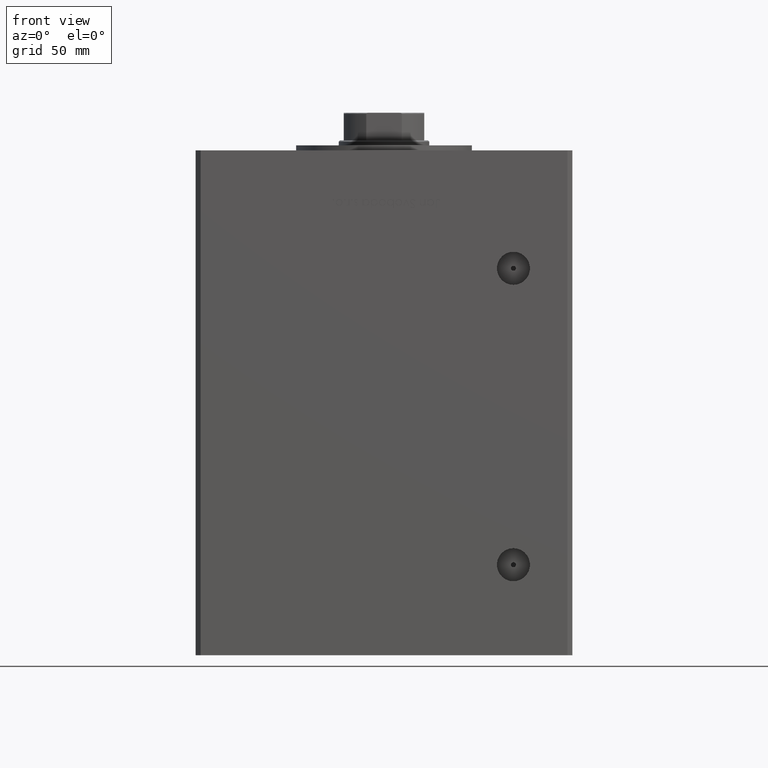
[diagram: clean part render]
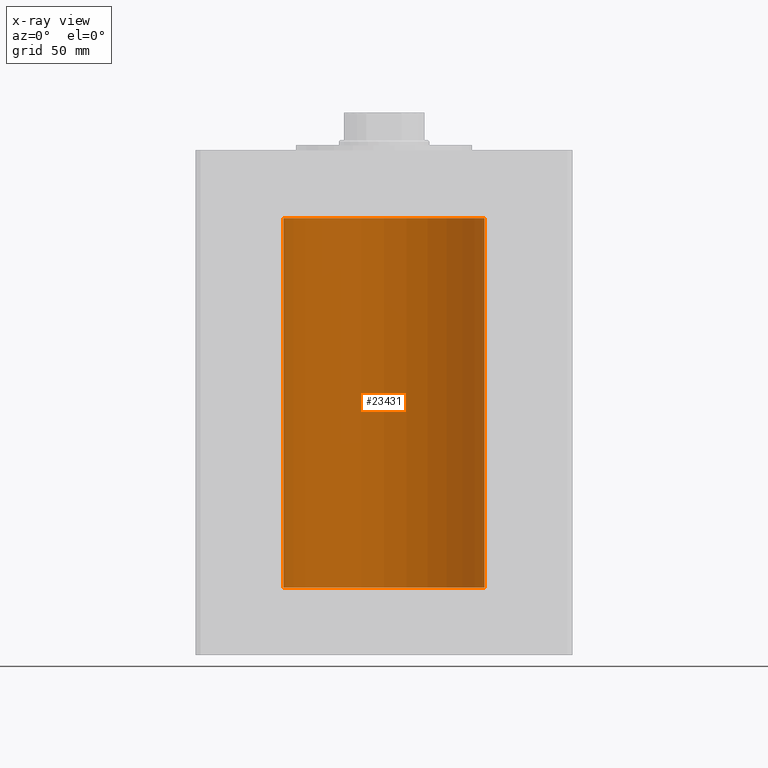
[diagram: x-ray — body ghosted, one internal face saturated and labeled with its STEP entity id]
A machine part, front view, then the same camera in x-ray: the body is ghosted and one INTERNAL B-rep face — a face not visible from any outside direction — is saturated and labeled: STEP entity #23431.
In plain terms, the highlighted cylindrical surface (partial cylindrical patch) has radius 40 mm, axis along (-0, -0, -1).
Its self-contained STEP definition (entity closure, byte-faithful):
#2271 = DIRECTION ( 'NONE',  ( -0.000000000000000000, 0.000000000000000000, 1.000000000000000000 ) ) ;
#3555 = CIRCLE ( 'NONE', #32995, 40.00000000000000000 ) ;
#5973 = CARTESIAN_POINT ( 'NONE',  ( -40.00000000000000000, 0.000000000000000000, 0.000000000000000000 ) ) ;
#6718 = DIRECTION ( 'NONE',  ( -1.000000000000000000, 0.000000000000000000, 0.000000000000000000 ) ) ;
#8280 = DIRECTION ( 'NONE',  ( 1.000000000000000000, 0.000000000000000000, 0.000000000000000000 ) ) ;
#10952 = CARTESIAN_POINT ( 'NONE',  ( 0.000000000000000000, 0.000000000000000000, 0.000000000000000000 ) ) ;
#11394 = VERTEX_POINT ( 'NONE', #52146 ) ;
#12774 = AXIS2_PLACEMENT_3D ( 'NONE', #10952, #2271, #38903 ) ;
#13785 = CARTESIAN_POINT ( 'NONE',  ( 40.00000000000000000, 4.898587196589413026E-15, 147.0000000000000000 ) ) ;
#14043 = LINE ( 'NONE', #13785, #20249 ) ;
#14213 = CARTESIAN_POINT ( 'NONE',  ( 40.00000000000000000, 4.898587196589413026E-15, 147.0000000000000000 ) ) ;
#14967 = CARTESIAN_POINT ( 'NONE',  ( -40.00000000000000000, 0.000000000000000000, 147.0000000000000000 ) ) ;
#15459 = ORIENTED_EDGE ( 'NONE', *, *, #28646, .F. ) ;
#16283 = VERTEX_POINT ( 'NONE', #14213 ) ;
#16589 = VERTEX_POINT ( 'NONE', #5973 ) ;
#16966 = DIRECTION ( 'NONE',  ( -0.000000000000000000, 0.000000000000000000, 1.000000000000000000 ) ) ;
#18578 = FACE_OUTER_BOUND ( 'NONE', #33943, .T. ) ;
#18830 = EDGE_CURVE ( 'NONE', #16283, #11394, #3555, .T. ) ;
#20249 = VECTOR ( 'NONE', #34046, 1000.000000000000000 ) ;
#20729 = EDGE_CURVE ( 'NONE', #45750, #16589, #35483, .T. ) ;
#20882 = ORIENTED_EDGE ( 'NONE', *, *, #20729, .F. ) ;
#23431 = ADVANCED_FACE ( 'NONE', ( #18578 ), #34646, .F. ) ;
#28646 = EDGE_CURVE ( 'NONE', #16283, #45750, #14043, .T. ) ;
#31090 = ORIENTED_EDGE ( 'NONE', *, *, #45806, .T. ) ;
#32995 = AXIS2_PLACEMENT_3D ( 'NONE', #36758, #16966, #8280 ) ;
#33943 = EDGE_LOOP ( 'NONE', ( #15459, #51150, #31090, #20882 ) ) ;
#34046 = DIRECTION ( 'NONE',  ( -0.000000000000000000, -0.000000000000000000, -1.000000000000000000 ) ) ;
#34646 = CYLINDRICAL_SURFACE ( 'NONE', #37278, 40.00000000000000000 ) ;
#35483 = CIRCLE ( 'NONE', #12774, 40.00000000000000000 ) ;
#36758 = CARTESIAN_POINT ( 'NONE',  ( 0.000000000000000000, 0.000000000000000000, 147.0000000000000000 ) ) ;
#37278 = AXIS2_PLACEMENT_3D ( 'NONE', #50749, #42849, #6718 ) ;
#38903 = DIRECTION ( 'NONE',  ( 1.000000000000000000, 0.000000000000000000, 0.000000000000000000 ) ) ;
#42128 = DIRECTION ( 'NONE',  ( -0.000000000000000000, -0.000000000000000000, -1.000000000000000000 ) ) ;
#42849 = DIRECTION ( 'NONE',  ( -0.000000000000000000, -0.000000000000000000, -1.000000000000000000 ) ) ;
#45750 = VERTEX_POINT ( 'NONE', #50812 ) ;
#45806 = EDGE_CURVE ( 'NONE', #11394, #16589, #50036, .T. ) ;
#50036 = LINE ( 'NONE', #14967, #51759 ) ;
#50749 = CARTESIAN_POINT ( 'NONE',  ( 0.000000000000000000, 0.000000000000000000, 147.0000000000000000 ) ) ;
#50812 = CARTESIAN_POINT ( 'NONE',  ( 40.00000000000000000, 4.898587196589413026E-15, 0.000000000000000000 ) ) ;
#51150 = ORIENTED_EDGE ( 'NONE', *, *, #18830, .T. ) ;
#51759 = VECTOR ( 'NONE', #42128, 1000.000000000000000 ) ;
#52146 = CARTESIAN_POINT ( 'NONE',  ( -40.00000000000000000, 0.000000000000000000, 147.0000000000000000 ) ) ;